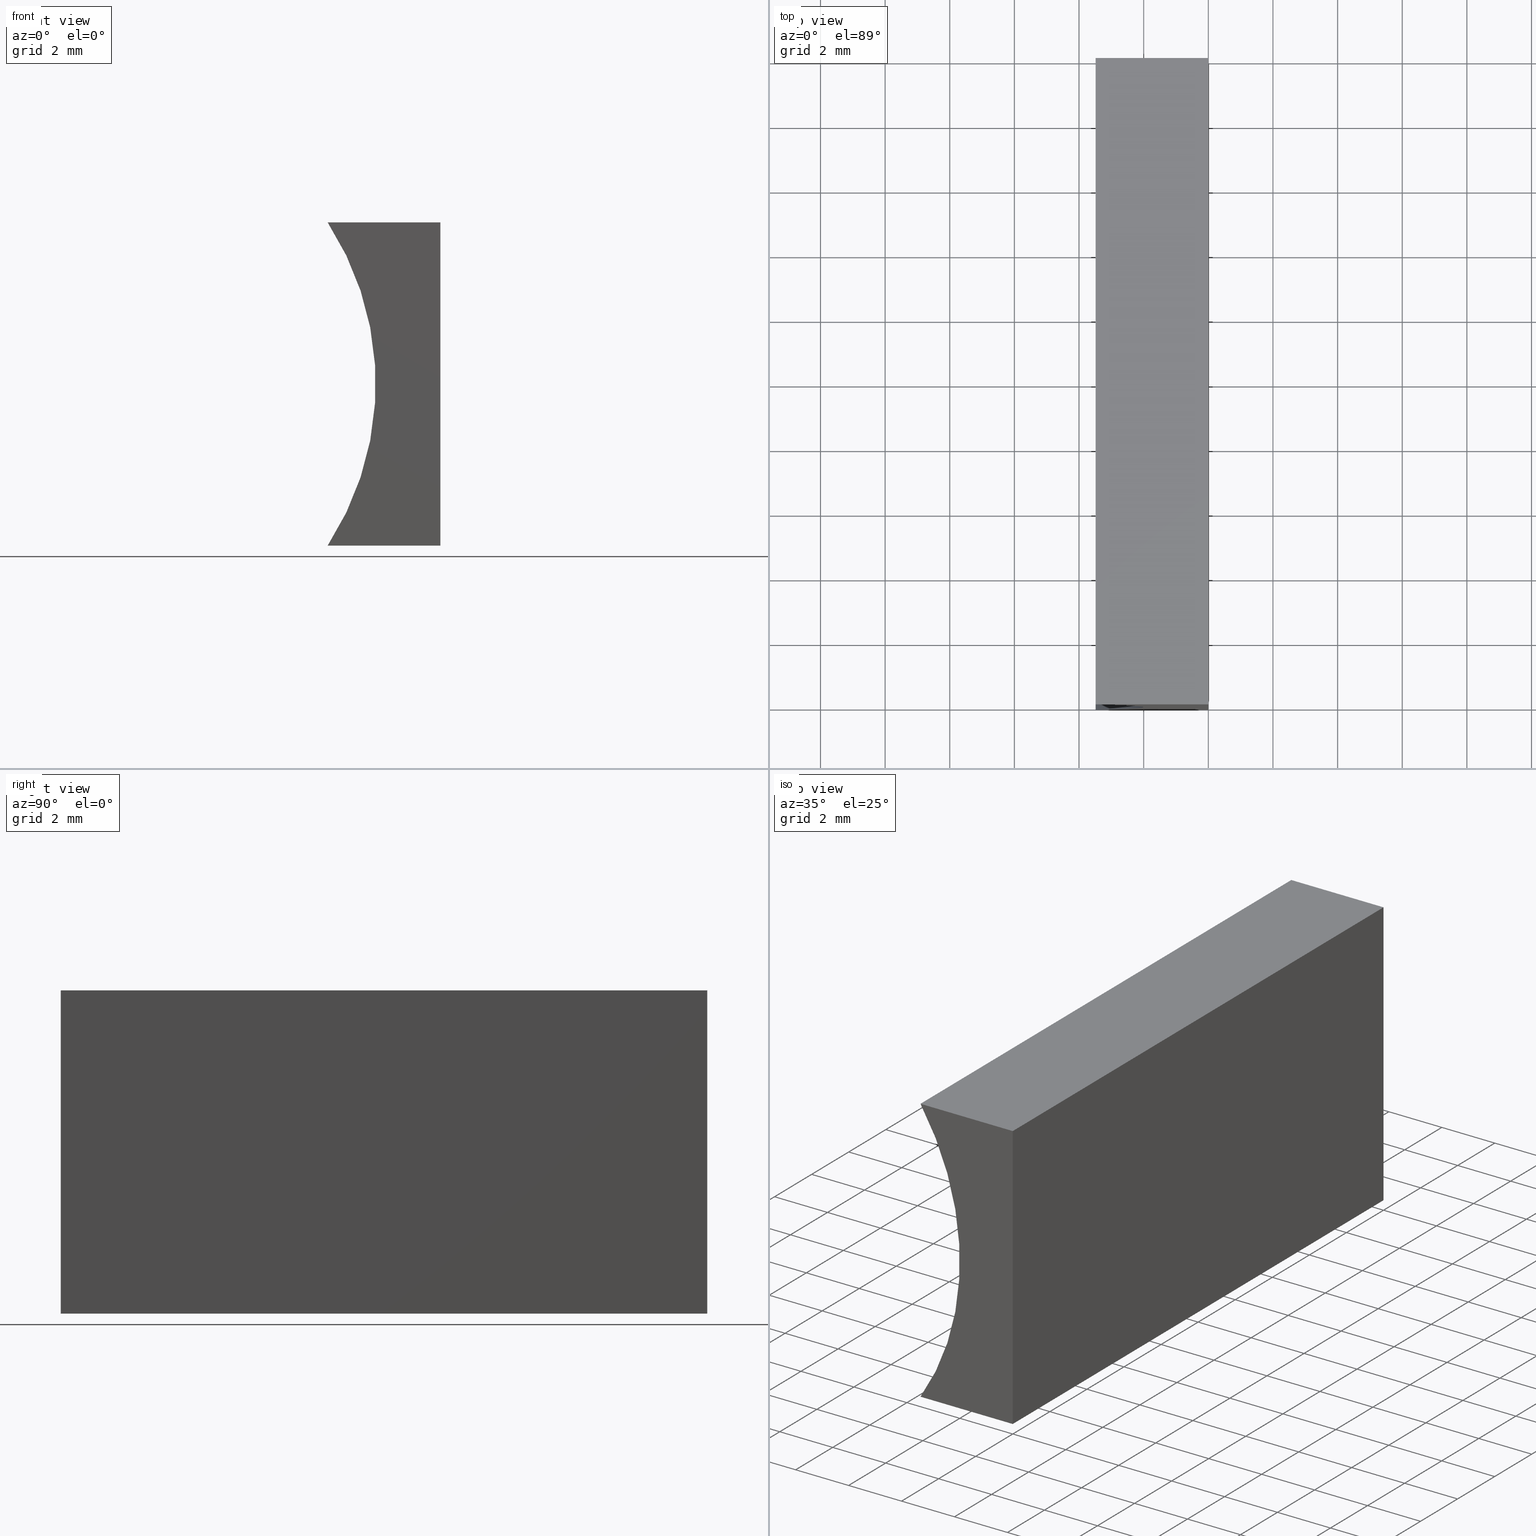
[diagram: canonical four-view strip — front | top / right | iso, engineering-drawing reading convention]
A machine part, canonical four-view strip (front | top / right | iso — engineering-drawing reading convention). The complete STEP part file that produces these views, byte-faithful:
ISO-10303-21;
HEADER;
FILE_DESCRIPTION (( 'STEP AP214' ),
    '1' );
FILE_NAME ('155476.STEP',
    '2019-07-03T07:21:19',
    ( 'user' ),
    ( '΢���й�' ),
    'SwSTEP 2.0',
    'SolidWorks 2016',
    '' );
FILE_SCHEMA (( 'AUTOMOTIVE_DESIGN' ));
ENDSEC;

DATA;
#1 = EDGE_CURVE ( 'NONE', #180, #191, #66, .T. ) ;
#2 = PLANE ( 'NONE',  #148 ) ;
#3 = CARTESIAN_POINT ( 'NONE',  ( -11.16000000000000000, 20.00000000000000000, 5.000000000000000000 ) ) ;
#4 =( LENGTH_UNIT ( ) NAMED_UNIT ( * ) SI_UNIT ( .MILLI., .METRE. ) );
#5 = VECTOR ( 'NONE', #16, 1000.000000000000000 ) ;
#6 = UNCERTAINTY_MEASURE_WITH_UNIT (LENGTH_MEASURE( 1.000000000000000100E-005 ), #4, 'distance_accuracy_value', 'NONE');
#7 = EDGE_CURVE ( 'NONE', #26, #48, #144, .T. ) ;
#8 = CARTESIAN_POINT ( 'NONE',  ( 0.0000000000000000000, 0.0000000000000000000, 0.0000000000000000000 ) ) ;
#9 = ORIENTED_EDGE ( 'NONE', *, *, #74, .F. ) ;
#10 = PRESENTATION_STYLE_ASSIGNMENT (( #188 ) ) ;
#11 = VECTOR ( 'NONE', #161, 1000.000000000000000 ) ;
#12 =( LENGTH_UNIT ( ) NAMED_UNIT ( * ) SI_UNIT ( .MILLI., .METRE. ) );
#13 = EDGE_CURVE ( 'NONE', #26, #39, #18, .T. ) ;
#14 = EDGE_LOOP ( 'NONE', ( #138, #37, #9, #60 ) ) ;
#15 = VECTOR ( 'NONE', #108, 1000.000000000000000 ) ;
#16 = DIRECTION ( 'NONE',  ( -0.0000000000000000000, -1.000000000000000000, -0.0000000000000000000 ) ) ;
#17 = CARTESIAN_POINT ( 'NONE',  ( 6.123233995736766300E-016, 20.00000000000000000, 10.00000000000000000 ) ) ;
#18 = LINE ( 'NONE', #147, #197 ) ;
#19 = SURFACE_SIDE_STYLE ('',( #160 ) ) ;
#20 = FACE_OUTER_BOUND ( 'NONE', #78, .T. ) ;
#21 = FILL_AREA_STYLE_COLOUR ( '', #193 ) ;
#22 = DIRECTION ( 'NONE',  ( 1.000000000000000000, 0.0000000000000000000, 4.977683401087794900E-016 ) ) ;
#23 = EDGE_CURVE ( 'NONE', #172, #191, #28, .T. ) ;
#24 = STYLED_ITEM ( 'NONE', ( #93 ), #107 ) ;
#25 = SURFACE_STYLE_USAGE ( .BOTH. , #194 ) ;
#26 = VERTEX_POINT ( 'NONE', #17 ) ;
#27 = ORIENTED_EDGE ( 'NONE', *, *, #152, .F. ) ;
#28 = LINE ( 'NONE', #139, #11 ) ;
#29 = AXIS2_PLACEMENT_3D ( 'NONE', #111, #40, #22 ) ;
#30 = DIRECTION ( 'NONE',  ( -0.0000000000000000000, -1.000000000000000000, -0.0000000000000000000 ) ) ;
#31 = PLANE ( 'NONE',  #151 ) ;
#32 = DIRECTION ( 'NONE',  ( -6.123233995736766000E-017, -0.0000000000000000000, -1.000000000000000000 ) ) ;
#33 = EDGE_CURVE ( 'NONE', #39, #56, #149, .T. ) ;
#34 = AXIS2_PLACEMENT_3D ( 'NONE', #68, #124, #204 ) ;
#35 = EDGE_CURVE ( 'NONE', #172, #26, #137, .T. ) ;
#36 = AXIS2_PLACEMENT_3D ( 'NONE', #130, #196, #81 ) ;
#37 = ORIENTED_EDGE ( 'NONE', *, *, #33, .F. ) ;
#38 = ORIENTED_EDGE ( 'NONE', *, *, #33, .T. ) ;
#39 = VERTEX_POINT ( 'NONE', #70 ) ;
#40 = DIRECTION ( 'NONE',  ( -4.977683401087794900E-016, 0.0000000000000000000, 1.000000000000000000 ) ) ;
#41 = PRESENTATION_LAYER_ASSIGNMENT (  '', '', ( #24 ) ) ;
#42 = PLANE ( 'NONE',  #36 ) ;
#43 = EDGE_LOOP ( 'NONE', ( #94, #109, #136, #45 ) ) ;
#44 = MANIFOLD_SOLID_BREP ( '͹̨-����1', #125 ) ;
#45 = ORIENTED_EDGE ( 'NONE', *, *, #7, .T. ) ;
#46 = VECTOR ( 'NONE', #145, 1000.000000000000000 ) ;
#47 = DIRECTION ( 'NONE',  ( -1.000000000000000000, 0.0000000000000000000, -4.977683401087794900E-016 ) ) ;
#48 = VERTEX_POINT ( 'NONE', #127 ) ;
#49 = LINE ( 'NONE', #67, #5 ) ;
#50 = LINE ( 'NONE', #59, #15 ) ;
#51 = EDGE_LOOP ( 'NONE', ( #116, #158, #84, #135 ) ) ;
#52 = ORIENTED_EDGE ( 'NONE', *, *, #13, .T. ) ;
#53 = PRODUCT_DEFINITION_SHAPE ( 'NONE', 'NONE',  #190 ) ;
#54 = DIRECTION ( 'NONE',  ( 0.0000000000000000000, 0.0000000000000000000, 1.000000000000000000 ) ) ;
#55 = CARTESIAN_POINT ( 'NONE',  ( -3.485001628664672300, 0.0000000000000000000, -3.469446951953614200E-015 ) ) ;
#56 = VERTEX_POINT ( 'NONE', #131 ) ;
#57 = CARTESIAN_POINT ( 'NONE',  ( 6.123233995736766300E-016, 0.0000000000000000000, 10.00000000000000000 ) ) ;
#58 = CARTESIAN_POINT ( 'NONE',  ( 0.0000000000000000000, 20.00000000000000000, 0.0000000000000000000 ) ) ;
#59 = CARTESIAN_POINT ( 'NONE',  ( 0.0000000000000000000, 0.0000000000000000000, 0.0000000000000000000 ) ) ;
#60 = ORIENTED_EDGE ( 'NONE', *, *, #1, .F. ) ;
#61 = VERTEX_POINT ( 'NONE', #96 ) ;
#62 = ADVANCED_FACE ( 'NONE', ( #86 ), #2, .F. ) ;
#63 = DIRECTION ( 'NONE',  ( -1.000000000000000000, 0.0000000000000000000, 4.977683401087795800E-016 ) ) ;
#64 = PRODUCT_DEFINITION_FORMATION_WITH_SPECIFIED_SOURCE ( '�κ�', '', #110, .NOT_KNOWN. ) ;
#65 = ADVANCED_FACE ( 'NONE', ( #142 ), #42, .F. ) ;
#66 = CIRCLE ( 'NONE', #80, 9.159999999999998400 ) ;
#67 = CARTESIAN_POINT ( 'NONE',  ( -3.485001628664672300, 20.00000000000000000, -3.469446951953614200E-015 ) ) ;
#68 = CARTESIAN_POINT ( 'NONE',  ( -11.16000000000000000, 20.00000000000000000, 5.000000000000000000 ) ) ;
#69 = EDGE_CURVE ( 'NONE', #61, #180, #49, .T. ) ;
#70 = CARTESIAN_POINT ( 'NONE',  ( 6.123233995736766300E-016, 0.0000000000000000000, 10.00000000000000000 ) ) ;
#71 = DIRECTION ( 'NONE',  ( -0.0000000000000000000, -1.000000000000000000, -0.0000000000000000000 ) ) ;
#72 =( NAMED_UNIT ( * ) SI_UNIT ( $, .STERADIAN. ) SOLID_ANGLE_UNIT ( ) );
#73 =( NAMED_UNIT ( * ) PLANE_ANGLE_UNIT ( ) SI_UNIT ( $, .RADIAN. ) );
#74 = EDGE_CURVE ( 'NONE', #191, #39, #189, .T. ) ;
#75 = CARTESIAN_POINT ( 'NONE',  ( 0.0000000000000000000, 20.00000000000000000, 0.0000000000000000000 ) ) ;
#76 = CARTESIAN_POINT ( 'NONE',  ( -11.16000000000000000, 0.0000000000000000000, 5.000000000000000000 ) ) ;
#77 = CARTESIAN_POINT ( 'NONE',  ( 0.0000000000000000000, 0.0000000000000000000, 0.0000000000000000000 ) ) ;
#78 = EDGE_LOOP ( 'NONE', ( #113, #87, #27, #101 ) ) ;
#79 = PLANE ( 'NONE',  #29 ) ;
#80 = AXIS2_PLACEMENT_3D ( 'NONE', #170, #30, #91 ) ;
#81 = DIRECTION ( 'NONE',  ( 6.123233995736766000E-017, 0.0000000000000000000, 1.000000000000000000 ) ) ;
#82 = DIRECTION ( 'NONE',  ( -6.123233995736766000E-017, -0.0000000000000000000, -1.000000000000000000 ) ) ;
#83 = PLANE ( 'NONE',  #134 ) ;
#84 = ORIENTED_EDGE ( 'NONE', *, *, #178, .F. ) ;
#85 = MECHANICAL_DESIGN_GEOMETRIC_PRESENTATION_REPRESENTATION (  '', ( #90 ), #171 ) ;
#86 = FACE_OUTER_BOUND ( 'NONE', #14, .T. ) ;
#87 = ORIENTED_EDGE ( 'NONE', *, *, #69, .F. ) ;
#88 = AXIS2_PLACEMENT_3D ( 'NONE', #8, #195, #156 ) ;
#89 = APPLICATION_PROTOCOL_DEFINITION ( 'draft international standard', 'automotive_design', 1998, #106 ) ;
#90 = STYLED_ITEM ( 'NONE', ( #10 ), #44 ) ;
#91 = DIRECTION ( 'NONE',  ( 0.0000000000000000000, 0.0000000000000000000, 1.000000000000000000 ) ) ;
#92 = DIRECTION ( 'NONE',  ( 0.0000000000000000000, -0.0000000000000000000, 1.000000000000000000 ) ) ;
#93 = PRESENTATION_STYLE_ASSIGNMENT (( #25 ) ) ;
#94 = ORIENTED_EDGE ( 'NONE', *, *, #152, .T. ) ;
#95 = LINE ( 'NONE', #153, #98 ) ;
#96 = CARTESIAN_POINT ( 'NONE',  ( -3.485001628664672300, 20.00000000000000000, -3.469446951953614200E-015 ) ) ;
#97 =( NAMED_UNIT ( * ) PLANE_ANGLE_UNIT ( ) SI_UNIT ( $, .RADIAN. ) );
#98 = VECTOR ( 'NONE', #47, 1000.000000000000000 ) ;
#99 = ORIENTED_EDGE ( 'NONE', *, *, #35, .F. ) ;
#100 = FILL_AREA_STYLE ('',( #181 ) ) ;
#101 = ORIENTED_EDGE ( 'NONE', *, *, #165, .T. ) ;
#102 = EDGE_CURVE ( 'NONE', #56, #180, #50, .T. ) ;
#103 = VECTOR ( 'NONE', #32, 1000.000000000000000 ) ;
#104 = ORIENTED_EDGE ( 'NONE', *, *, #13, .F. ) ;
#105 = DIRECTION ( 'NONE',  ( 1.000000000000000000, -0.0000000000000000000, -4.977683401087795800E-016 ) ) ;
#106 = APPLICATION_CONTEXT ( 'automotive_design' ) ;
#107 = ADVANCED_BREP_SHAPE_REPRESENTATION ( '155476', ( #44, #88 ), #173 ) ;
#108 = DIRECTION ( 'NONE',  ( -1.000000000000000000, 0.0000000000000000000, -4.977683401087794900E-016 ) ) ;
#109 = ORIENTED_EDGE ( 'NONE', *, *, #178, .T. ) ;
#110 = PRODUCT ( '155476', '155476', '', ( #122 ) ) ;
#111 = CARTESIAN_POINT ( 'NONE',  ( 0.0000000000000000000, 20.00000000000000000, 0.0000000000000000000 ) ) ;
#112 = ORIENTED_EDGE ( 'NONE', *, *, #7, .F. ) ;
#113 = ORIENTED_EDGE ( 'NONE', *, *, #102, .T. ) ;
#114 = DIRECTION ( 'NONE',  ( 1.000000000000000000, -0.0000000000000000000, -4.977683401087795800E-016 ) ) ;
#115 = ORIENTED_EDGE ( 'NONE', *, *, #74, .T. ) ;
#116 = ORIENTED_EDGE ( 'NONE', *, *, #1, .T. ) ;
#117 = LINE ( 'NONE', #58, #46 ) ;
#118 = FACE_OUTER_BOUND ( 'NONE', #43, .T. ) ;
#119 = CARTESIAN_POINT ( 'NONE',  ( -3.485001628664671400, 20.00000000000000000, 10.00000000000000200 ) ) ;
#120 =( NAMED_UNIT ( * ) PLANE_ANGLE_UNIT ( ) SI_UNIT ( $, .RADIAN. ) );
#121 = VECTOR ( 'NONE', #82, 1000.000000000000000 ) ;
#122 = PRODUCT_CONTEXT ( 'NONE', #168, 'mechanical' ) ;
#123 = UNCERTAINTY_MEASURE_WITH_UNIT (LENGTH_MEASURE( 1.000000000000000100E-005 ), #186, 'distance_accuracy_value', 'NONE');
#124 = DIRECTION ( 'NONE',  ( -0.0000000000000000000, -1.000000000000000000, -0.0000000000000000000 ) ) ;
#125 = CLOSED_SHELL ( 'NONE', ( #143, #200, #185, #65, #128, #62 ) ) ;
#126 = COLOUR_RGB ( '',1.000000000000000000, 1.000000000000000000, 1.000000000000000000 ) ;
#127 = CARTESIAN_POINT ( 'NONE',  ( 0.0000000000000000000, 20.00000000000000000, 0.0000000000000000000 ) ) ;
#128 = ADVANCED_FACE ( 'NONE', ( #118 ), #31, .T. ) ;
#129 =( NAMED_UNIT ( * ) SI_UNIT ( $, .STERADIAN. ) SOLID_ANGLE_UNIT ( ) );
#130 = CARTESIAN_POINT ( 'NONE',  ( 0.0000000000000000000, 20.00000000000000000, 0.0000000000000000000 ) ) ;
#131 = CARTESIAN_POINT ( 'NONE',  ( 0.0000000000000000000, 0.0000000000000000000, 0.0000000000000000000 ) ) ;
#132 = VECTOR ( 'NONE', #105, 1000.000000000000000 ) ;
#133 = FACE_OUTER_BOUND ( 'NONE', #51, .T. ) ;
#134 = AXIS2_PLACEMENT_3D ( 'NONE', #154, #179, #63 ) ;
#135 = ORIENTED_EDGE ( 'NONE', *, *, #69, .T. ) ;
#136 = ORIENTED_EDGE ( 'NONE', *, *, #35, .T. ) ;
#137 = LINE ( 'NONE', #175, #166 ) ;
#138 = ORIENTED_EDGE ( 'NONE', *, *, #102, .F. ) ;
#139 = CARTESIAN_POINT ( 'NONE',  ( -3.485001628664671400, 20.00000000000000000, 10.00000000000000200 ) ) ;
#140 = SHAPE_DEFINITION_REPRESENTATION ( #53, #107 ) ;
#141 = ORIENTED_EDGE ( 'NONE', *, *, #23, .T. ) ;
#142 = FACE_OUTER_BOUND ( 'NONE', #182, .T. ) ;
#143 = ADVANCED_FACE ( 'NONE', ( #20 ), #79, .F. ) ;
#144 = LINE ( 'NONE', #75, #103 ) ;
#145 = DIRECTION ( 'NONE',  ( -0.0000000000000000000, -1.000000000000000000, -0.0000000000000000000 ) ) ;
#146 = SURFACE_STYLE_FILL_AREA ( #203 ) ;
#147 = CARTESIAN_POINT ( 'NONE',  ( 6.123233995736766300E-016, 20.00000000000000000, 10.00000000000000000 ) ) ;
#148 = AXIS2_PLACEMENT_3D ( 'NONE', #76, #167, #174 ) ;
#149 = LINE ( 'NONE', #77, #121 ) ;
#150 = ORIENTED_EDGE ( 'NONE', *, *, #165, .F. ) ;
#151 = AXIS2_PLACEMENT_3D ( 'NONE', #3, #159, #92 ) ;
#152 = EDGE_CURVE ( 'NONE', #48, #61, #95, .T. ) ;
#153 = CARTESIAN_POINT ( 'NONE',  ( 0.0000000000000000000, 20.00000000000000000, 0.0000000000000000000 ) ) ;
#154 = CARTESIAN_POINT ( 'NONE',  ( 6.123233995736766300E-016, 20.00000000000000000, 10.00000000000000000 ) ) ;
#155 = PRODUCT_DEFINITION_CONTEXT ( 'detailed design', #106, 'design' ) ;
#156 = DIRECTION ( 'NONE',  ( 1.000000000000000000, 0.0000000000000000000, 0.0000000000000000000 ) ) ;
#157 = UNCERTAINTY_MEASURE_WITH_UNIT (LENGTH_MEASURE( 1.000000000000000100E-005 ), #12, 'distance_accuracy_value', 'NONE');
#158 = ORIENTED_EDGE ( 'NONE', *, *, #23, .F. ) ;
#159 = DIRECTION ( 'NONE',  ( 0.0000000000000000000, 1.000000000000000000, 0.0000000000000000000 ) ) ;
#160 = SURFACE_STYLE_FILL_AREA ( #100 ) ;
#161 = DIRECTION ( 'NONE',  ( -0.0000000000000000000, -1.000000000000000000, -0.0000000000000000000 ) ) ;
#162 = PRODUCT_RELATED_PRODUCT_CATEGORY ( 'part', '', ( #110 ) ) ;
#163 = CARTESIAN_POINT ( 'NONE',  ( -11.16000000000000000, 20.00000000000000000, 5.000000000000000000 ) ) ;
#164 =( NAMED_UNIT ( * ) SI_UNIT ( $, .STERADIAN. ) SOLID_ANGLE_UNIT ( ) );
#165 = EDGE_CURVE ( 'NONE', #48, #56, #117, .T. ) ;
#166 = VECTOR ( 'NONE', #114, 1000.000000000000000 ) ;
#167 = DIRECTION ( 'NONE',  ( 0.0000000000000000000, 1.000000000000000000, 0.0000000000000000000 ) ) ;
#168 = APPLICATION_CONTEXT ( 'automotive_design' ) ;
#169 = EDGE_LOOP ( 'NONE', ( #115, #104, #99, #141 ) ) ;
#170 = CARTESIAN_POINT ( 'NONE',  ( -11.16000000000000000, 0.0000000000000000000, 5.000000000000000000 ) ) ;
#171 =( GEOMETRIC_REPRESENTATION_CONTEXT ( 3 ) GLOBAL_UNCERTAINTY_ASSIGNED_CONTEXT ( ( #123 ) ) GLOBAL_UNIT_ASSIGNED_CONTEXT ( ( #186, #120, #129 ) ) REPRESENTATION_CONTEXT ( 'NONE', 'WORKASPACE' ) );
#172 = VERTEX_POINT ( 'NONE', #119 ) ;
#173 =( GEOMETRIC_REPRESENTATION_CONTEXT ( 3 ) GLOBAL_UNCERTAINTY_ASSIGNED_CONTEXT ( ( #6 ) ) GLOBAL_UNIT_ASSIGNED_CONTEXT ( ( #4, #97, #164 ) ) REPRESENTATION_CONTEXT ( 'NONE', 'WORKASPACE' ) );
#174 = DIRECTION ( 'NONE',  ( 0.0000000000000000000, -0.0000000000000000000, 1.000000000000000000 ) ) ;
#175 = CARTESIAN_POINT ( 'NONE',  ( 6.123233995736766300E-016, 20.00000000000000000, 10.00000000000000000 ) ) ;
#176 = CYLINDRICAL_SURFACE ( 'NONE', #34, 9.159999999999998400 ) ;
#177 = DIRECTION ( 'NONE',  ( -0.0000000000000000000, -1.000000000000000000, -0.0000000000000000000 ) ) ;
#178 = EDGE_CURVE ( 'NONE', #61, #172, #198, .T. ) ;
#179 = DIRECTION ( 'NONE',  ( -4.977683401087795800E-016, 0.0000000000000000000, -1.000000000000000000 ) ) ;
#180 = VERTEX_POINT ( 'NONE', #55 ) ;
#181 = FILL_AREA_STYLE_COLOUR ( '', #126 ) ;
#182 = EDGE_LOOP ( 'NONE', ( #38, #150, #112, #52 ) ) ;
#183 =( GEOMETRIC_REPRESENTATION_CONTEXT ( 3 ) GLOBAL_UNCERTAINTY_ASSIGNED_CONTEXT ( ( #157 ) ) GLOBAL_UNIT_ASSIGNED_CONTEXT ( ( #12, #73, #72 ) ) REPRESENTATION_CONTEXT ( 'NONE', 'WORKASPACE' ) );
#184 = FACE_OUTER_BOUND ( 'NONE', #169, .T. ) ;
#185 = ADVANCED_FACE ( 'NONE', ( #184 ), #83, .F. ) ;
#186 =( LENGTH_UNIT ( ) NAMED_UNIT ( * ) SI_UNIT ( .MILLI., .METRE. ) );
#187 = AXIS2_PLACEMENT_3D ( 'NONE', #163, #71, #54 ) ;
#188 = SURFACE_STYLE_USAGE ( .BOTH. , #19 ) ;
#189 = LINE ( 'NONE', #57, #132 ) ;
#190 = PRODUCT_DEFINITION ( 'δ֪', '', #64, #155 ) ;
#191 = VERTEX_POINT ( 'NONE', #199 ) ;
#192 = PRESENTATION_LAYER_ASSIGNMENT (  '', '', ( #90 ) ) ;
#193 = COLOUR_RGB ( '',1.000000000000000000, 1.000000000000000000, 1.000000000000000000 ) ;
#194 = SURFACE_SIDE_STYLE ('',( #146 ) ) ;
#195 = DIRECTION ( 'NONE',  ( 0.0000000000000000000, 0.0000000000000000000, 1.000000000000000000 ) ) ;
#196 = DIRECTION ( 'NONE',  ( -1.000000000000000000, 0.0000000000000000000, 6.123233995736766000E-017 ) ) ;
#197 = VECTOR ( 'NONE', #177, 1000.000000000000000 ) ;
#198 = CIRCLE ( 'NONE', #187, 9.159999999999998400 ) ;
#199 = CARTESIAN_POINT ( 'NONE',  ( -3.485001628664671400, 0.0000000000000000000, 10.00000000000000200 ) ) ;
#200 = ADVANCED_FACE ( 'NONE', ( #133 ), #176, .F. ) ;
#201 = APPLICATION_PROTOCOL_DEFINITION ( 'draft international standard', 'automotive_design', 1998, #168 ) ;
#202 = MECHANICAL_DESIGN_GEOMETRIC_PRESENTATION_REPRESENTATION (  '', ( #24 ), #183 ) ;
#203 = FILL_AREA_STYLE ('',( #21 ) ) ;
#204 = DIRECTION ( 'NONE',  ( 0.0000000000000000000, 0.0000000000000000000, -1.000000000000000000 ) ) ;
ENDSEC;
END-ISO-10303-21;
